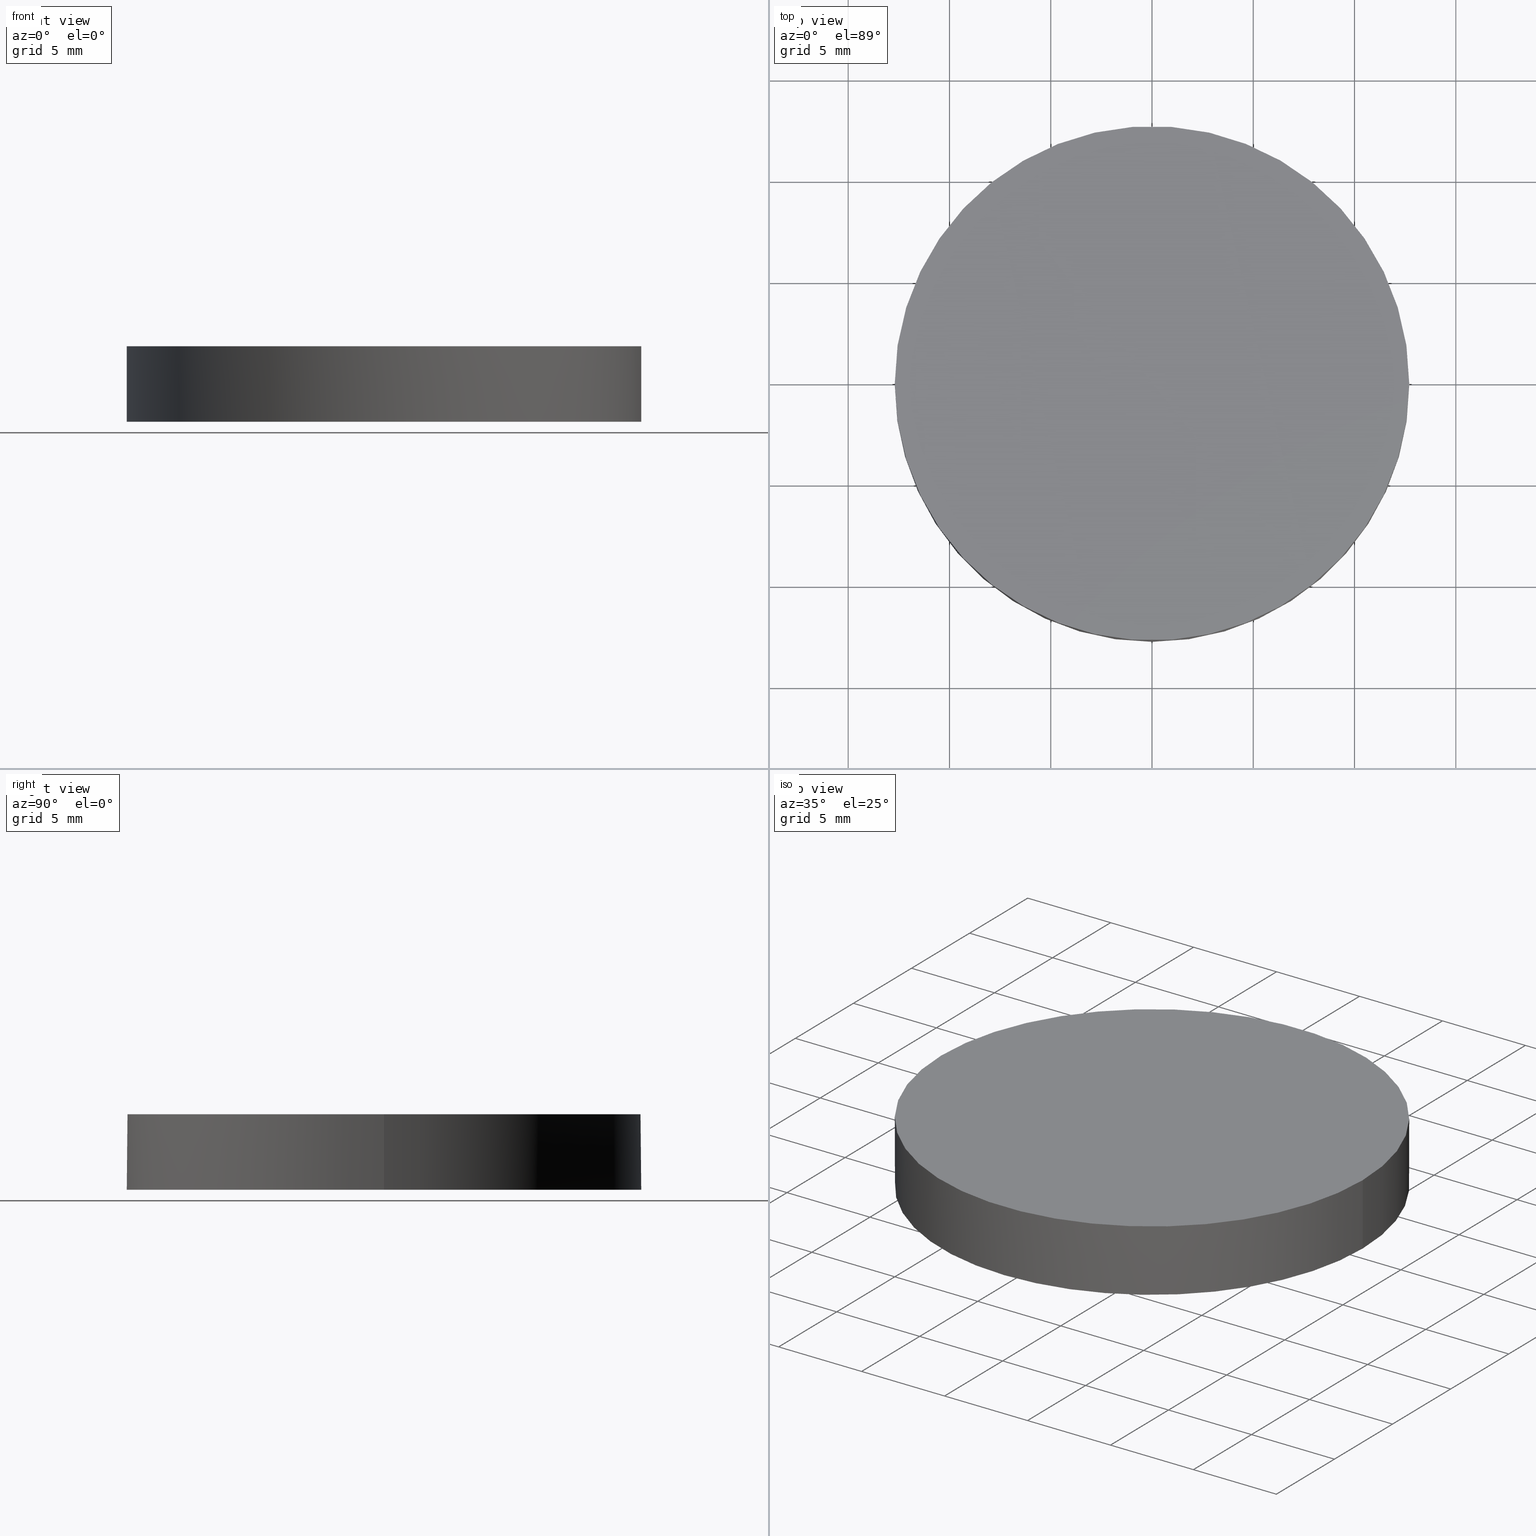
[diagram: canonical four-view strip — front | top / right | iso, engineering-drawing reading convention]
A machine part, canonical four-view strip (front | top / right | iso — engineering-drawing reading convention). The complete STEP part file that produces these views, byte-faithful:
ISO-10303-21;
HEADER;
FILE_DESCRIPTION (( 'STEP AP203' ),
    '1' );
FILE_NAME ('112-0235E BK7 pl-cv 25.4 F-250.STEP',
    '2019-01-15T08:49:02',
    ( '' ),
    ( '' ),
    'SwSTEP 2.0',
    'SolidWorks 2017',
    '' );
FILE_SCHEMA (( 'CONFIG_CONTROL_DESIGN' ));
ENDSEC;

DATA;
#1 = EDGE_CURVE ( 'NONE', #167, #208, #222, .T. ) ;
#2 = DATE_AND_TIME ( #207, #143 ) ;
#3 = ORIENTED_EDGE ( 'NONE', *, *, #54, .T. ) ;
#4 = CALENDAR_DATE ( 2019, 15, 1 ) ;
#5 = CC_DESIGN_PERSON_AND_ORGANIZATION_ASSIGNMENT ( #13, #35, ( #124 ) ) ;
#6 = COORDINATED_UNIVERSAL_TIME_OFFSET ( 2, 0, .AHEAD. ) ;
#7 = APPROVAL ( #161, 'UNSPECIFIED' ) ;
#8 = CARTESIAN_POINT ( 'NONE',  ( 6.558480859566113400E-014, -12.69999999999995100, -0.6232786285613619600 ) ) ;
#9 = CARTESIAN_POINT ( 'NONE',  ( 0.0000000000000000000, 26.11199999999999800, 3.100000000000000500 ) ) ;
#10 = PERSON_AND_ORGANIZATION ( #30, #146 ) ;
#11 =( GEOMETRIC_REPRESENTATION_CONTEXT ( 3 ) GLOBAL_UNCERTAINTY_ASSIGNED_CONTEXT ( ( #169 ) ) GLOBAL_UNIT_ASSIGNED_CONTEXT ( ( #34, #137, #163 ) ) REPRESENTATION_CONTEXT ( 'NONE', 'WORKASPACE' ) );
#12 = CARTESIAN_POINT ( 'NONE',  ( 1.421085471520200100E-014, 1.421085471520200100E-014, -129.6999999999999900 ) ) ;
#13 = PERSON_AND_ORGANIZATION ( #30, #146 ) ;
#14 = ORIENTED_EDGE ( 'NONE', *, *, #74, .F. ) ;
#15 = EDGE_CURVE ( 'NONE', #209, #167, #33, .T. ) ;
#16 = APPROVAL_STATUS ( 'not_yet_approved' ) ;
#17 = ORIENTED_EDGE ( 'NONE', *, *, #71, .T. ) ;
#18 = PERSON_AND_ORGANIZATION_ROLE ( 'creator' ) ;
#19 = MANIFOLD_SOLID_BREP ( 'Imported1', #66 ) ;
#20 = ORIENTED_EDGE ( 'NONE', *, *, #1, .F. ) ;
#21 = CC_DESIGN_APPROVAL ( #7, ( #32 ) ) ;
#22 = ORIENTED_EDGE ( 'NONE', *, *, #74, .T. ) ;
#23 =( BOUNDED_SURFACE ( )  B_SPLINE_SURFACE ( 3, 3, ( 
 ( #44, #213, #197, #48 ),
 ( #232, #115, #83, #49 ),
 ( #96, #29, #85, #179 ),
 ( #230, #113, #154, #134 ) ),
 .UNSPECIFIED., .F., .F., .T. ) 
 B_SPLINE_SURFACE_WITH_KNOTS ( ( 4, 4 ),
 ( 4, 4 ),
 ( 0.0000000000000000000, 1.000000000000000000 ),
 ( 0.0000000000000000000, 1.000000000000000000 ),
 .UNSPECIFIED. ) 
 GEOMETRIC_REPRESENTATION_ITEM ( )  RATIONAL_B_SPLINE_SURFACE ( (
 ( 1.000000000000000000, 0.9991889511066741600, 0.9991889511066741600, 1.000000000000000000),
 ( 0.9967190197258384300, 0.9959106318679329400, 0.9959106318679329400, 0.9967190197258384300),
 ( 0.9967190197258384300, 0.9959106318679329400, 0.9959106318679329400, 0.9967190197258384300),
 ( 1.000000000000000000, 0.9991889511066741600, 0.9991889511066741600, 1.000000000000000000) ) ) 
 REPRESENTATION_ITEM ( '' )  SURFACE ( )  );
#24 = CC_DESIGN_DATE_AND_TIME_ASSIGNMENT ( #116, #181, ( #168 ) ) ;
#25 = CIRCLE ( 'NONE', #119, 12.69999999999999900 ) ;
#26 = VERTEX_POINT ( 'NONE', #8 ) ;
#27 = PLANE ( 'NONE',  #140 ) ;
#28 = ORIENTED_EDGE ( 'NONE', *, *, #126, .F. ) ;
#29 = CARTESIAN_POINT ( 'NONE',  ( -8.543445721963362200, -4.298069287684533000, 0.002696849516138697200 ) ) ;
#30 = PERSON ( 'UNSPECIFIED', 'UNSPECIFIED', 'UNSPECIFIED', ('UNSPECIFIED'), ('UNSPECIFIED'), ('UNSPECIFIED') ) ;
#31 = CARTESIAN_POINT ( 'NONE',  ( -12.69999999999999900, 3.997792089092478900E-015, 3.100000000000000500 ) ) ;
#32 = PRODUCT_DEFINITION_FORMATION_WITH_SPECIFIED_SOURCE ( 'ANY', '', #124, .NOT_KNOWN. ) ;
#33 = CIRCLE ( 'NONE', #89, 12.69999999999999900 ) ;
#34 =( LENGTH_UNIT ( ) NAMED_UNIT ( * ) SI_UNIT ( .MILLI., .METRE. ) );
#35 = PERSON_AND_ORGANIZATION_ROLE ( 'design_owner' ) ;
#36 = CARTESIAN_POINT ( 'NONE',  ( 12.69999999999999900, 2.442490654175340100E-015, -0.6232786285613769500 ) ) ;
#37 = APPROVAL_PERSON_ORGANIZATION ( #224, #110, #204 ) ;
#38 = FACE_OUTER_BOUND ( 'NONE', #86, .T. ) ;
#39 = EDGE_CURVE ( 'NONE', #209, #75, #233, .T. ) ;
#40 = CALENDAR_DATE ( 2019, 15, 1 ) ;
#41 = APPROVAL_PERSON_ORGANIZATION ( #101, #159, #69 ) ;
#42 = DIRECTION ( 'NONE',  ( 0.0000000000000000000, 0.0000000000000000000, 1.000000000000000000 ) ) ;
#43 = CC_DESIGN_SECURITY_CLASSIFICATION ( #94, ( #32 ) ) ;
#44 = CARTESIAN_POINT ( 'NONE',  ( -12.71307684645447000, 12.85190222140401100, -1.265984698804928400 ) ) ;
#45 = CC_DESIGN_PERSON_AND_ORGANIZATION_ASSIGNMENT ( #10, #221, ( #32 ) ) ;
#46 = DIRECTION ( 'NONE',  ( -0.0000000000000000000, -0.0000000000000000000, -1.000000000000000000 ) ) ;
#47 = DIRECTION ( 'NONE',  ( 1.000000000000000000, 0.0000000000000000000, 0.0000000000000000000 ) ) ;
#48 = CARTESIAN_POINT ( 'NONE',  ( 3.816391647148975600E-014, 12.85190222140400700, -0.6383147123381717200 ) ) ;
#49 = CARTESIAN_POINT ( 'NONE',  ( 3.642919299551294900E-014, 4.298069287684551700, 0.2134719680957709900 ) ) ;
#50 = DIRECTION ( 'NONE',  ( 0.0000000000000000000, 0.0000000000000000000, 1.000000000000000000 ) ) ;
#51 = PERSON_AND_ORGANIZATION ( #30, #146 ) ;
#52 = MECHANICAL_CONTEXT ( 'NONE', #118, 'mechanical' ) ;
#53 = ORIENTED_EDGE ( 'NONE', *, *, #15, .F. ) ;
#54 = EDGE_CURVE ( 'NONE', #26, #209, #91, .T. ) ;
#55 = ADVANCED_FACE ( 'NONE', ( #112 ), #23, .F. ) ;
#56 = PRODUCT_RELATED_PRODUCT_CATEGORY ( 'detail', '', ( #124 ) ) ;
#57 = LINE ( 'NONE', #81, #127 ) ;
#58 = PERSON_AND_ORGANIZATION ( #30, #146 ) ;
#59 = DIRECTION ( 'NONE',  ( 1.000000000000000000, 0.0000000000000000000, 0.0000000000000000000 ) ) ;
#60 = ORIENTED_EDGE ( 'NONE', *, *, #39, .F. ) ;
#61 = AXIS2_PLACEMENT_3D ( 'NONE', #77, #212, #93 ) ;
#62 = CARTESIAN_POINT ( 'NONE',  ( 4.246297980521931400, 12.85190222140400500, -0.6383147123381633900 ) ) ;
#63 = CARTESIAN_POINT ( 'NONE',  ( 8.543445721963358600, -4.298069287684537400, 0.002696849516136746500 ) ) ;
#64 = AXIS2_PLACEMENT_3D ( 'NONE', #79, #147, #131 ) ;
#65 = LOCAL_TIME ( 10, 49, 2.000000000000000000, #139 ) ;
#66 = CLOSED_SHELL ( 'NONE', ( #55, #186, #166, #73, #90 ) ) ;
#67 = CARTESIAN_POINT ( 'NONE',  ( 4.996003610813200500E-016, 2.442490654175340100E-015, -0.6232786285613769500 ) ) ;
#68 = SECURITY_CLASSIFICATION_LEVEL ( 'unclassified' ) ;
#69 = APPROVAL_ROLE ( '' ) ;
#70 = ORIENTED_EDGE ( 'NONE', *, *, #54, .F. ) ;
#71 = EDGE_CURVE ( 'NONE', #167, #26, #117, .T. ) ;
#72 = CALENDAR_DATE ( 2019, 15, 1 ) ;
#73 = ADVANCED_FACE ( 'NONE', ( #226 ), #123, .T. ) ;
#74 = EDGE_CURVE ( 'NONE', #208, #26, #103, .T. ) ;
#75 = VERTEX_POINT ( 'NONE', #215 ) ;
#76 = CIRCLE ( 'NONE', #157, 12.69999999999999900 ) ;
#77 = CARTESIAN_POINT ( 'NONE',  ( 4.996003610813200500E-016, 2.442490654175340100E-015, -0.6232786285613769500 ) ) ;
#78 = DIRECTION ( 'NONE',  ( 0.0000000000000000000, 0.0000000000000000000, 1.000000000000000000 ) ) ;
#79 = CARTESIAN_POINT ( 'NONE',  ( 4.996003610813200500E-016, 2.442490654175340100E-015, -0.6232786285613769500 ) ) ;
#80 = ORIENTED_EDGE ( 'NONE', *, *, #1, .T. ) ;
#81 = CARTESIAN_POINT ( 'NONE',  ( -12.69999999999999900, 3.997792089092478900E-015, -0.6232786285613769500 ) ) ;
#82 = DIRECTION ( 'NONE',  ( 0.0000000000000000000, 0.0000000000000000000, 1.000000000000000000 ) ) ;
#83 = CARTESIAN_POINT ( 'NONE',  ( -4.274322874609541000, 4.298069287684552500, 0.2134719680957716800 ) ) ;
#84 = ADVANCED_BREP_SHAPE_REPRESENTATION ( '112-0235E BK7 pl-cv 25.4 F-250', ( #19, #210 ), #11 ) ;
#85 = CARTESIAN_POINT ( 'NONE',  ( -4.274322874609543600, -4.298069287684533900, 0.2134719680957729600 ) ) ;
#86 = EDGE_LOOP ( 'NONE', ( #171, #229 ) ) ;
#87 = CARTESIAN_POINT ( 'NONE',  ( 8.543445721963362200, 4.298069287684549000, 0.002696849516135879600 ) ) ;
#88 = PERSON_AND_ORGANIZATION_ROLE ( 'creator' ) ;
#89 = AXIS2_PLACEMENT_3D ( 'NONE', #148, #42, #59 ) ;
#90 = ADVANCED_FACE ( 'NONE', ( #38 ), #27, .T. ) ;
#91 = CIRCLE ( 'NONE', #64, 12.69999999999999900 ) ;
#92 = CC_DESIGN_DATE_AND_TIME_ASSIGNMENT ( #2, #162, ( #94 ) ) ;
#93 = DIRECTION ( 'NONE',  ( 1.000000000000000000, 0.0000000000000000000, 0.0000000000000000000 ) ) ;
#94 = SECURITY_CLASSIFICATION ( '', '', #68 ) ;
#95 = PERSON_AND_ORGANIZATION ( #30, #146 ) ;
#96 = CARTESIAN_POINT ( 'NONE',  ( -12.79698113997898200, -4.298069287684532100, -0.4183405408631472600 ) ) ;
#97 = DIRECTION ( 'NONE',  ( 0.0000000000000000000, 0.0000000000000000000, 1.000000000000000000 ) ) ;
#98 = CARTESIAN_POINT ( 'NONE',  ( 4.996003610813200500E-016, 2.442490654175340100E-015, -0.6232786285613769500 ) ) ;
#99 = CARTESIAN_POINT ( 'NONE',  ( 6.554445975148576400E-014, -12.85190222140399100, -0.6383147123381616200 ) ) ;
#100 = CARTESIAN_POINT ( 'NONE',  ( 4.246297980521926100, -12.85190222140399300, -0.6383147123381633900 ) ) ;
#101 = PERSON_AND_ORGANIZATION ( #30, #146 ) ;
#102 = CARTESIAN_POINT ( 'NONE',  ( 4.996003610813200500E-016, 2.442490654175340100E-015, -0.6232786285613769500 ) ) ;
#103 = CIRCLE ( 'NONE', #200, 12.69999999999999900 ) ;
#104 = DIRECTION ( 'NONE',  ( 1.000000000000000000, 0.0000000000000000000, 0.0000000000000000000 ) ) ;
#105 = DIRECTION ( 'NONE',  ( -0.0000000000000000000, -0.0000000000000000000, -1.000000000000000000 ) ) ;
#106 = DESIGN_CONTEXT ( 'detailed design', #138, 'design' ) ;
#107 = ORIENTED_EDGE ( 'NONE', *, *, #15, .T. ) ;
#108 = AXIS2_PLACEMENT_3D ( 'NONE', #12, #135, #132 ) ;
#109 = ORIENTED_EDGE ( 'NONE', *, *, #172, .T. ) ;
#110 = APPROVAL ( #16, 'UNSPECIFIED' ) ;
#111 = SHAPE_DEFINITION_REPRESENTATION ( #130, #84 ) ;
#112 = FACE_OUTER_BOUND ( 'NONE', #125, .T. ) ;
#113 = CARTESIAN_POINT ( 'NONE',  ( -8.487430028127041800, -12.85190222140398900, -0.8477078692486018600 ) ) ;
#114 = CARTESIAN_POINT ( 'NONE',  ( 12.79698113997892500, 4.298069287684549000, -0.4183405408631419300 ) ) ;
#115 = CARTESIAN_POINT ( 'NONE',  ( -8.543445721963358600, 4.298069287684553400, 0.002696849516137775600 ) ) ;
#116 = DATE_AND_TIME ( #4, #182 ) ;
#117 = CIRCLE ( 'NONE', #108, 129.6999999999999900 ) ;
#118 = APPLICATION_CONTEXT ( 'configuration controlled 3d designs of mechanical parts and assemblies' ) ;
#119 = AXIS2_PLACEMENT_3D ( 'NONE', #180, #46, #47 ) ;
#120 = CARTESIAN_POINT ( 'NONE',  ( -12.69999999999999900, 3.997792089092478900E-015, -0.6232786285613769500 ) ) ;
#121 = APPROVAL_ROLE ( '' ) ;
#122 = DATE_AND_TIME ( #164, #201 ) ;
#123 = CYLINDRICAL_SURFACE ( 'NONE', #142, 12.69999999999999900 ) ;
#124 = PRODUCT ( '112-0235E BK7 pl-cv 25.4 F-250', '112-0235E BK7 pl-cv 25.4 F-250', '', ( #52 ) ) ;
#125 = EDGE_LOOP ( 'NONE', ( #20, #17, #14 ) ) ;
#126 = EDGE_CURVE ( 'NONE', #208, #184, #57, .T. ) ;
#127 = VECTOR ( 'NONE', #214, 1000.000000000000000 ) ;
#128 = EDGE_CURVE ( 'NONE', #184, #75, #25, .T. ) ;
#129 = CC_DESIGN_PERSON_AND_ORGANIZATION_ASSIGNMENT ( #51, #183, ( #94 ) ) ;
#130 = PRODUCT_DEFINITION_SHAPE ( 'NONE', 'NONE',  #168 ) ;
#131 = DIRECTION ( 'NONE',  ( 1.000000000000000000, 0.0000000000000000000, 0.0000000000000000000 ) ) ;
#132 = DIRECTION ( 'NONE',  ( 2.240445334451199600E-016, 1.000000000000000000, 0.0000000000000000000 ) ) ;
#133 = LOCAL_TIME ( 10, 49, 2.000000000000000000, #6 ) ;
#134 = CARTESIAN_POINT ( 'NONE',  ( 3.122502256758252800E-014, -12.85190222140399100, -0.6383147123381715000 ) ) ;
#135 = DIRECTION ( 'NONE',  ( 1.000000000000000000, -2.240445334451200100E-016, -4.200549787686929800E-016 ) ) ;
#136 = VECTOR ( 'NONE', #78, 1000.000000000000000 ) ;
#137 =( NAMED_UNIT ( * ) PLANE_ANGLE_UNIT ( ) SI_UNIT ( $, .RADIAN. ) );
#138 = APPLICATION_CONTEXT ( 'configuration controlled 3d designs of mechanical parts and assemblies' ) ;
#139 = COORDINATED_UNIVERSAL_TIME_OFFSET ( 2, 0, .AHEAD. ) ;
#140 = AXIS2_PLACEMENT_3D ( 'NONE', #9, #50, #217 ) ;
#141 = COORDINATED_UNIVERSAL_TIME_OFFSET ( 2, 0, .AHEAD. ) ;
#142 = AXIS2_PLACEMENT_3D ( 'NONE', #98, #97, #153 ) ;
#143 = LOCAL_TIME ( 10, 49, 2.000000000000000000, #150 ) ;
#144 = CC_DESIGN_PERSON_AND_ORGANIZATION_ASSIGNMENT ( #205, #88, ( #168 ) ) ;
#145 = APPROVAL_DATE_TIME ( #122, #7 ) ;
#146 = ORGANIZATION ( 'UNSPECIFIED', 'UNSPECIFIED', '' ) ;
#147 = DIRECTION ( 'NONE',  ( 0.0000000000000000000, 0.0000000000000000000, 1.000000000000000000 ) ) ;
#148 = CARTESIAN_POINT ( 'NONE',  ( 4.996003610813200500E-016, 2.442490654175340100E-015, -0.6232786285613769500 ) ) ;
#149 = CARTESIAN_POINT ( 'NONE',  ( 7.127553974516716400E-014, 12.69999999999996900, -0.6232786285613619600 ) ) ;
#150 = COORDINATED_UNIVERSAL_TIME_OFFSET ( 2, 0, .AHEAD. ) ;
#151 = CC_DESIGN_APPROVAL ( #159, ( #94 ) ) ;
#152 = CARTESIAN_POINT ( 'NONE',  ( 6.781869649625357900E-014, -4.298069287684535700, 0.2134719680957820300 ) ) ;
#153 = DIRECTION ( 'NONE',  ( 1.000000000000000000, 0.0000000000000000000, 0.0000000000000000000 ) ) ;
#154 = CARTESIAN_POINT ( 'NONE',  ( -4.246297980521881700, -12.85190222140398900, -0.6383147123381708300 ) ) ;
#155 = APPROVAL_PERSON_ORGANIZATION ( #58, #7, #121 ) ;
#156 = DIRECTION ( 'NONE',  ( 1.000000000000000000, 0.0000000000000000000, 0.0000000000000000000 ) ) ;
#157 = AXIS2_PLACEMENT_3D ( 'NONE', #220, #105, #104 ) ;
#158 = ORIENTED_EDGE ( 'NONE', *, *, #128, .T. ) ;
#159 = APPROVAL ( #203, 'UNSPECIFIED' ) ;
#160 = DIRECTION ( 'NONE',  ( 1.000000000000000000, 0.0000000000000000000, 0.0000000000000000000 ) ) ;
#161 = APPROVAL_STATUS ( 'not_yet_approved' ) ;
#162 = DATE_TIME_ROLE ( 'classification_date' ) ;
#163 =( NAMED_UNIT ( * ) SI_UNIT ( $, .STERADIAN. ) SOLID_ANGLE_UNIT ( ) );
#164 = CALENDAR_DATE ( 2019, 15, 1 ) ;
#165 = FACE_OUTER_BOUND ( 'NONE', #189, .T. ) ;
#166 = ADVANCED_FACE ( 'NONE', ( #165 ), #173, .F. ) ;
#167 = VERTEX_POINT ( 'NONE', #149 ) ;
#168 = PRODUCT_DEFINITION ( 'UNKNOWN', '', #32, #106 ) ;
#169 = UNCERTAINTY_MEASURE_WITH_UNIT (LENGTH_MEASURE( 1.000000000000000100E-005 ), #34, 'distance_accuracy_value', 'NONE');
#170 = DATE_AND_TIME ( #40, #133 ) ;
#171 = ORIENTED_EDGE ( 'NONE', *, *, #172, .F. ) ;
#172 = EDGE_CURVE ( 'NONE', #75, #184, #76, .T. ) ;
#173 =( BOUNDED_SURFACE ( )  B_SPLINE_SURFACE ( 3, 3, ( 
 ( #175, #62, #198, #177 ),
 ( #195, #231, #87, #114 ),
 ( #152, #176, #63, #219 ),
 ( #99, #100, #196, #216 ) ),
 .UNSPECIFIED., .F., .F., .F. ) 
 B_SPLINE_SURFACE_WITH_KNOTS ( ( 4, 4 ),
 ( 4, 4 ),
 ( 0.0000000000000000000, 1.000000000000000000 ),
 ( 0.0000000000000000000, 1.000000000000000000 ),
 .UNSPECIFIED. ) 
 GEOMETRIC_REPRESENTATION_ITEM ( )  RATIONAL_B_SPLINE_SURFACE ( (
 ( 1.000000000000000000, 0.9991889511066741600, 0.9991889511066741600, 1.000000000000000000),
 ( 0.9967190197258384300, 0.9959106318679329400, 0.9959106318679329400, 0.9967190197258384300),
 ( 0.9967190197258384300, 0.9959106318679329400, 0.9959106318679329400, 0.9967190197258384300),
 ( 1.000000000000000000, 0.9991889511066741600, 0.9991889511066741600, 1.000000000000000000) ) ) 
 REPRESENTATION_ITEM ( '' )  SURFACE ( )  );
#174 = EDGE_LOOP ( 'NONE', ( #107, #80, #225, #158, #60 ) ) ;
#175 = CARTESIAN_POINT ( 'NONE',  ( 7.130325662563927700E-014, 12.85190222140400700, -0.6383147123381616200 ) ) ;
#176 = CARTESIAN_POINT ( 'NONE',  ( 4.274322874609589800, -4.298069287684536600, 0.2134719680957802800 ) ) ;
#177 = CARTESIAN_POINT ( 'NONE',  ( 12.71307684645442200, 12.85190222140400400, -1.265984698804922400 ) ) ;
#178 = ORIENTED_EDGE ( 'NONE', *, *, #71, .F. ) ;
#179 = CARTESIAN_POINT ( 'NONE',  ( 3.295974604355934100E-014, -4.298069287684534800, 0.2134719680957722600 ) ) ;
#180 = CARTESIAN_POINT ( 'NONE',  ( 4.996003610813200500E-016, 2.442490654175340100E-015, 3.100000000000000500 ) ) ;
#181 = DATE_TIME_ROLE ( 'creation_date' ) ;
#182 = LOCAL_TIME ( 10, 49, 2.000000000000000000, #211 ) ;
#183 = PERSON_AND_ORGANIZATION_ROLE ( 'classification_officer' ) ;
#184 = VERTEX_POINT ( 'NONE', #31 ) ;
#185 = CARTESIAN_POINT ( 'NONE',  ( 0.0000000000000000000, 0.0000000000000000000, 0.0000000000000000000 ) ) ;
#186 = ADVANCED_FACE ( 'NONE', ( #227 ), #192, .T. ) ;
#187 = DIRECTION ( 'NONE',  ( 0.0000000000000000000, 0.0000000000000000000, 1.000000000000000000 ) ) ;
#188 = APPROVAL_DATE_TIME ( #218, #159 ) ;
#189 = EDGE_LOOP ( 'NONE', ( #178, #53, #70 ) ) ;
#190 = AXIS2_PLACEMENT_3D ( 'NONE', #102, #234, #235 ) ;
#191 = CC_DESIGN_APPROVAL ( #110, ( #168 ) ) ;
#192 = CYLINDRICAL_SURFACE ( 'NONE', #190, 12.69999999999999900 ) ;
#193 = CARTESIAN_POINT ( 'NONE',  ( 12.69999999999999900, 2.442490654175340100E-015, -0.6232786285613769500 ) ) ;
#194 = EDGE_LOOP ( 'NONE', ( #28, #22, #3, #202, #109 ) ) ;
#195 = CARTESIAN_POINT ( 'NONE',  ( 6.974461435280173600E-014, 4.298069287684550800, 0.2134719680957811700 ) ) ;
#196 = CARTESIAN_POINT ( 'NONE',  ( 8.487430028127034700, -12.85190222140399300, -0.8477078692486037500 ) ) ;
#197 = CARTESIAN_POINT ( 'NONE',  ( -4.246297980521874600, 12.85190222140400900, -0.6383147123381710500 ) ) ;
#198 = CARTESIAN_POINT ( 'NONE',  ( 8.487430028127040100, 12.85190222140400500, -0.8477078692486037500 ) ) ;
#199 = APPLICATION_PROTOCOL_DEFINITION ( 'international standard', 'config_control_design', 1994, #138 ) ;
#200 = AXIS2_PLACEMENT_3D ( 'NONE', #67, #82, #156 ) ;
#201 = LOCAL_TIME ( 10, 49, 2.000000000000000000, #141 ) ;
#202 = ORIENTED_EDGE ( 'NONE', *, *, #39, .T. ) ;
#203 = APPROVAL_STATUS ( 'not_yet_approved' ) ;
#204 = APPROVAL_ROLE ( '' ) ;
#205 = PERSON_AND_ORGANIZATION ( #30, #146 ) ;
#206 = CC_DESIGN_PERSON_AND_ORGANIZATION_ASSIGNMENT ( #95, #18, ( #32 ) ) ;
#207 = CALENDAR_DATE ( 2019, 15, 1 ) ;
#208 = VERTEX_POINT ( 'NONE', #120 ) ;
#209 = VERTEX_POINT ( 'NONE', #36 ) ;
#210 = AXIS2_PLACEMENT_3D ( 'NONE', #185, #187, #160 ) ;
#211 = COORDINATED_UNIVERSAL_TIME_OFFSET ( 2, 0, .AHEAD. ) ;
#212 = DIRECTION ( 'NONE',  ( 0.0000000000000000000, 0.0000000000000000000, 1.000000000000000000 ) ) ;
#213 = CARTESIAN_POINT ( 'NONE',  ( -8.487430028127034700, 12.85190222140400900, -0.8477078692486018600 ) ) ;
#214 = DIRECTION ( 'NONE',  ( 0.0000000000000000000, 0.0000000000000000000, 1.000000000000000000 ) ) ;
#215 = CARTESIAN_POINT ( 'NONE',  ( 12.69999999999999900, 2.442490654175340100E-015, 3.100000000000000500 ) ) ;
#216 = CARTESIAN_POINT ( 'NONE',  ( 12.71307684645441700, -12.85190222140399500, -1.265984698804922400 ) ) ;
#217 = DIRECTION ( 'NONE',  ( 1.000000000000000000, 0.0000000000000000000, -0.0000000000000000000 ) ) ;
#218 = DATE_AND_TIME ( #72, #65 ) ;
#219 = CARTESIAN_POINT ( 'NONE',  ( 12.79698113997892300, -4.298069287684538300, -0.4183405408631410400 ) ) ;
#220 = CARTESIAN_POINT ( 'NONE',  ( 4.996003610813200500E-016, 2.442490654175340100E-015, 3.100000000000000500 ) ) ;
#221 = PERSON_AND_ORGANIZATION_ROLE ( 'design_supplier' ) ;
#222 = CIRCLE ( 'NONE', #61, 12.69999999999999900 ) ;
#223 = APPLICATION_PROTOCOL_DEFINITION ( 'international standard', 'config_control_design', 1994, #118 ) ;
#224 = PERSON_AND_ORGANIZATION ( #30, #146 ) ;
#225 = ORIENTED_EDGE ( 'NONE', *, *, #126, .T. ) ;
#226 = FACE_OUTER_BOUND ( 'NONE', #194, .T. ) ;
#227 = FACE_OUTER_BOUND ( 'NONE', #174, .T. ) ;
#228 = APPROVAL_DATE_TIME ( #170, #110 ) ;
#229 = ORIENTED_EDGE ( 'NONE', *, *, #128, .F. ) ;
#230 = CARTESIAN_POINT ( 'NONE',  ( -12.71307684645447700, -12.85190222140398800, -1.265984698804928400 ) ) ;
#231 = CARTESIAN_POINT ( 'NONE',  ( 4.274322874609591600, 4.298069287684549900, 0.2134719680957794000 ) ) ;
#232 = CARTESIAN_POINT ( 'NONE',  ( -12.79698113997897800, 4.298069287684554300, -0.4183405408631480900 ) ) ;
#233 = LINE ( 'NONE', #193, #136 ) ;
#234 = DIRECTION ( 'NONE',  ( 0.0000000000000000000, 0.0000000000000000000, 1.000000000000000000 ) ) ;
#235 = DIRECTION ( 'NONE',  ( 1.000000000000000000, 0.0000000000000000000, 0.0000000000000000000 ) ) ;
ENDSEC;
END-ISO-10303-21;
